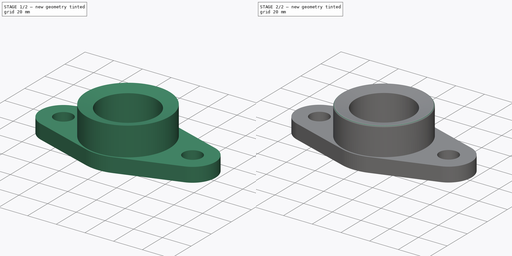
[diagram: build sequence overview — one tinted view per stage of 2, left to right]
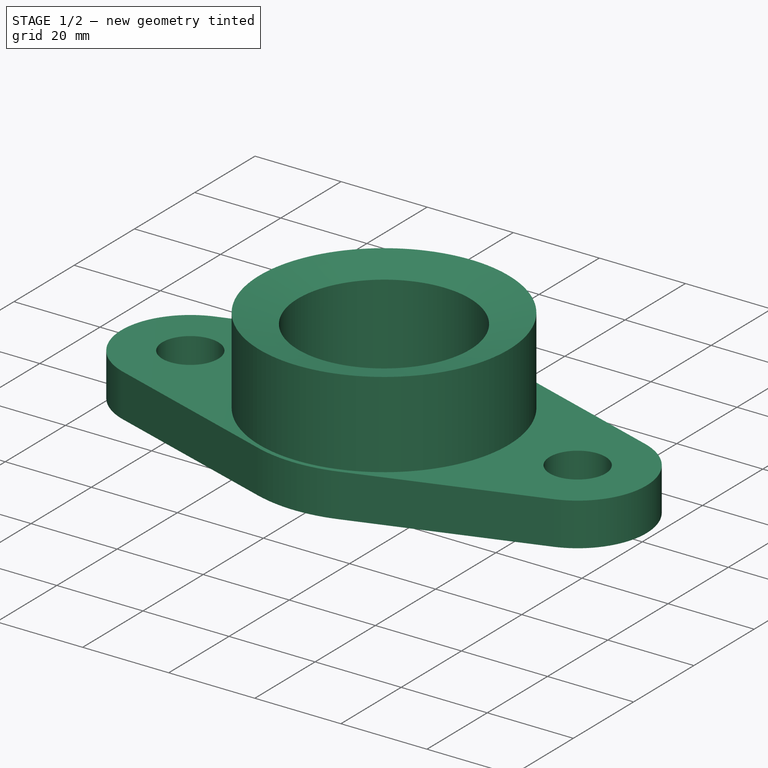
[diagram: stage 1 of 2 — iso view after this stage's code; geometry added in this stage tinted green]
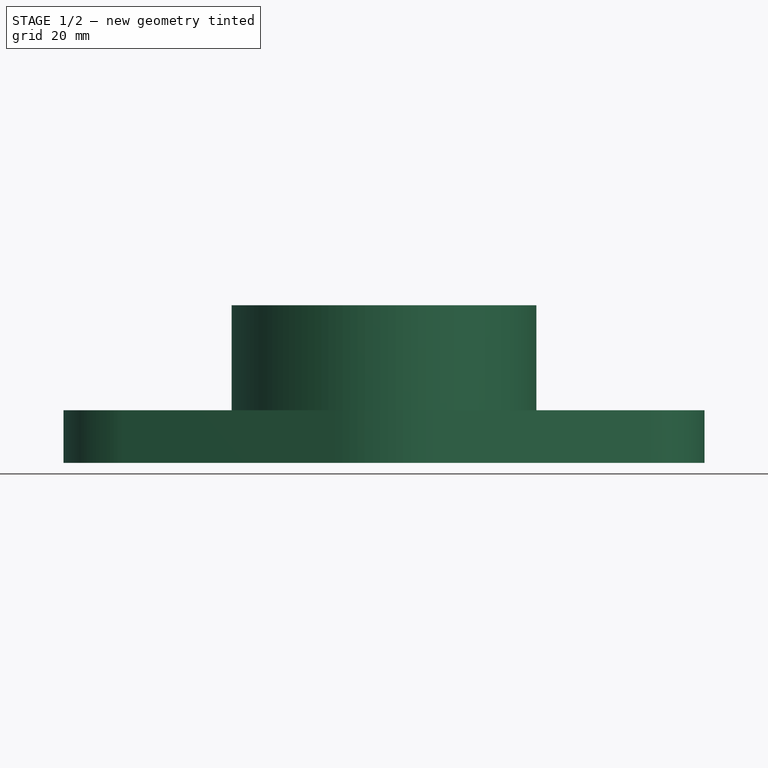
[diagram: stage 1 of 2 — front view after this stage's code; geometry added in this stage tinted green]
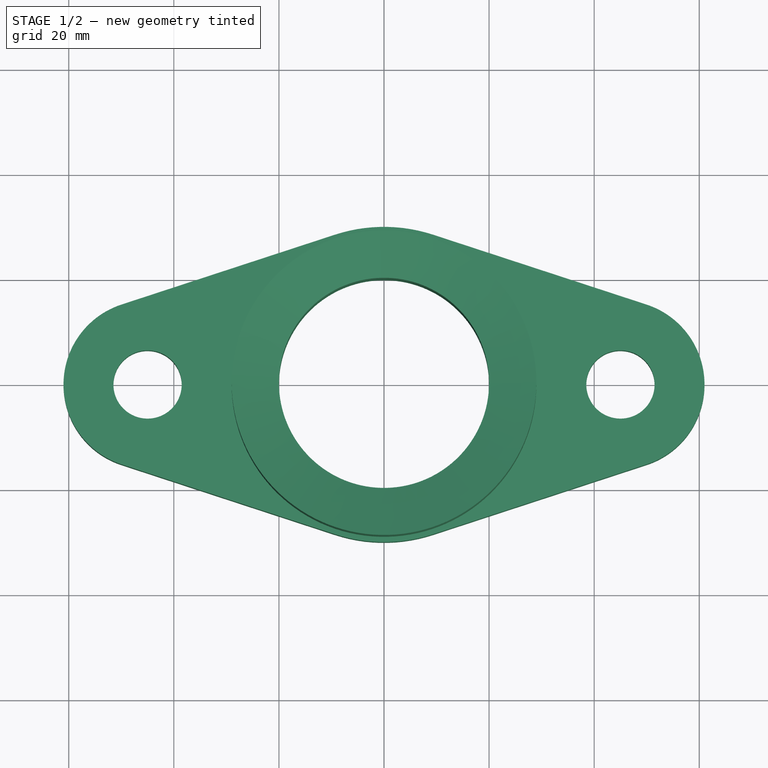
[diagram: stage 1 of 2 — top view after this stage's code; geometry added in this stage tinted green]
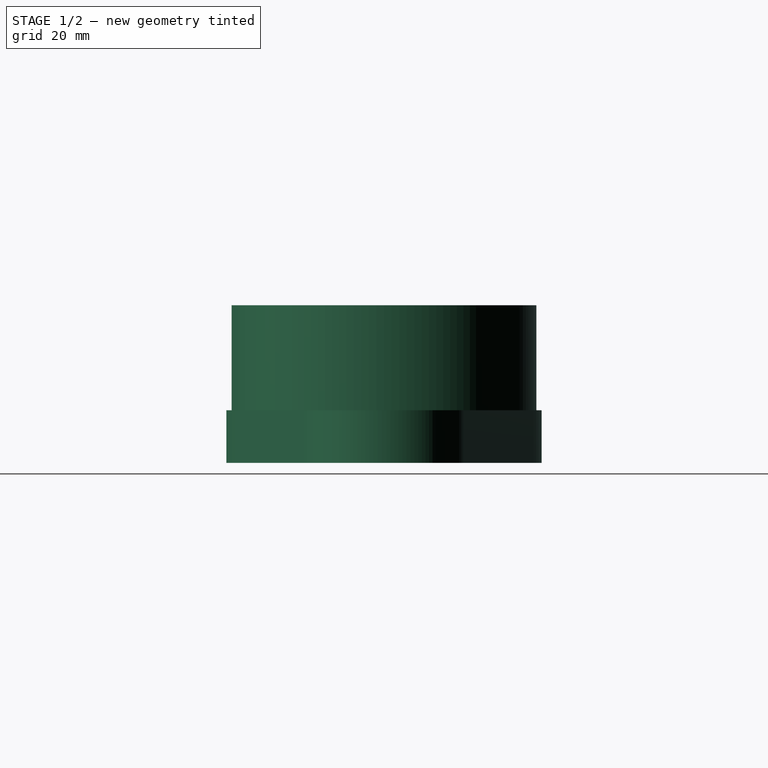
[diagram: stage 1 of 2 — right view after this stage's code; geometry added in this stage tinted green]
FCSTD DOCUMENT  (FreeCAD 0.15R4671 (Git))
Label: one
License: All rights reserved
LicenseURL: http://en.wikipedia.org/wiki/All_rights_reserved
objects: Sketcher::SketchObject×2, PartDesign::Pad×1, PartDesign::Revolution×1, Part::MultiFuse×1, PartDesign::Fillet×1
note: 8 computed .brp shape members not serialized (recipe doc carries the construction recipe); baked Part::Feature solids carry a one-line shape summary decoded from their .brp

FEATURE [Sketcher::SketchObject] Sketch
  sketch-geometry (11):
    g0: ArcOfCircle CenterX=0 CenterY=0 CenterZ=0 NormalX=0 NormalY=0 NormalZ=1 Radius=30 StartAngle=1.25443 EndAngle=1.88716
    g1: ArcOfCircle CenterX=0 CenterY=0 CenterZ=0 NormalX=0 NormalY=0 NormalZ=1 Radius=30 StartAngle=4.39603 EndAngle=5.02875
    g2: ArcOfCircle CenterX=-45 CenterY=0 CenterZ=0 NormalX=0 NormalY=0 NormalZ=1 Radius=16 StartAngle=1.88716 EndAngle=4.39603
    g3: ArcOfCircle CenterX=45 CenterY=0 CenterZ=0 NormalX=0 NormalY=0 NormalZ=1 Radius=16 StartAngle=5.02875 EndAngle=7.53762
    g4: LineSegment StartX=-49.9778 StartY=15.206 StartZ=0 EndX=-9.33333 EndY=28.5112 EndZ=0
    g5: LineSegment StartX=-49.9778 StartY=-15.206 StartZ=0 EndX=-9.33333 EndY=-28.5112 EndZ=0
    g6: LineSegment StartX=9.33333 StartY=28.5112 StartZ=0 EndX=49.9778 EndY=15.206 EndZ=0
    g7: LineSegment StartX=9.33333 StartY=-28.5112 StartZ=0 EndX=49.9778 EndY=-15.206 EndZ=0
    g8: Circle CenterX=0 CenterY=0 CenterZ=0 NormalX=0 NormalY=0 NormalZ=1 Radius=20
    g9: Circle CenterX=-45 CenterY=0 CenterZ=0 NormalX=0 NormalY=0 NormalZ=1 Radius=6.5
    g10: Circle CenterX=45 CenterY=0 CenterZ=0 NormalX=0 NormalY=0 NormalZ=1 Radius=6.5
  constraints (24):
    c: Coincident(g0,g-1)
    c: Coincident(g1,g-1)
    c: PointOnObject(g2,g-1)
    c: PointOnObject(g3,g-1)
    c: Tangent(g4,g0) = 1.5708
    c: Tangent(g4,g2) = 1.5708
    c: Tangent(g2,g5) = -1.5708
    c: Tangent(g5,g1) = -1.5708
    c: Tangent(g1,g7) = -1.5708
    c: Tangent(g7,g3) = -1.5708
    c: Tangent(g3,g6) = 1.5708
    c: Tangent(g6,g0) = 1.5708
    c: Symmetric(g2,g3,g-2)
    c: DistanceX(g2,g3) = 90
    c: Equal(g0,g1)
    c: Equal(g3,g2)
    c: Radius(g0) = 30
    c: Radius(g3) = 16
    c: Coincident(g8,g-1)
    c: Radius(g8) = 20
    c: Coincident(g9,g2)
    c: Coincident(g10,g3)
    c: Equal(g9,g10)
    c: Radius(g10) = 6.5
FEATURE [PartDesign::Pad] Pad
  Length = 10
  Length2 = 100
  Sketch = -> Sketch
  Type = 0
FEATURE [Sketcher::SketchObject] Sketch001
  Placement = pos=(0,0,0) rot=(-1,0,0;4.71239rad)
  sketch-geometry (4):
    g0: LineSegment StartX=20 StartY=9 StartZ=0 EndX=20 EndY=27.5885 EndZ=0
    g1: LineSegment StartX=20 StartY=27.5885 StartZ=0 EndX=29 EndY=30 EndZ=0
    g2: LineSegment StartX=29 StartY=30 StartZ=0 EndX=29 EndY=9 EndZ=0
    g3: LineSegment StartX=29 StartY=9 StartZ=0 EndX=20 EndY=9 EndZ=0
  constraints (12):
    c: Vertical(g0)
    c: Coincident(g0,g1)
    c: Coincident(g1,g2)
    c: Vertical(g2)
    c: Coincident(g2,g3)
    c: Coincident(g3,g0)
    c: Angle(g1) = 0.261799
    c: DistanceX(g-1,g0) = 20
    c: DistanceX(g-1,g1) = 29
    c: DistanceY(g-1,g0) = 9
    c: DistanceY(g-1,g2) = 9
    c: DistanceY(g-1,g1) = 30
FEATURE [PartDesign::Revolution] Revolution
  Angle = 360
  Axis = (0,0,1)
  Base = (0,0,0)
  Placement = pos=(0,0,0) rot=(-1,0,0;4.71239rad)
  ReferenceAxis = -> Sketch001 [V_Axis]
  Reversed = true
  Sketch = -> Sketch001
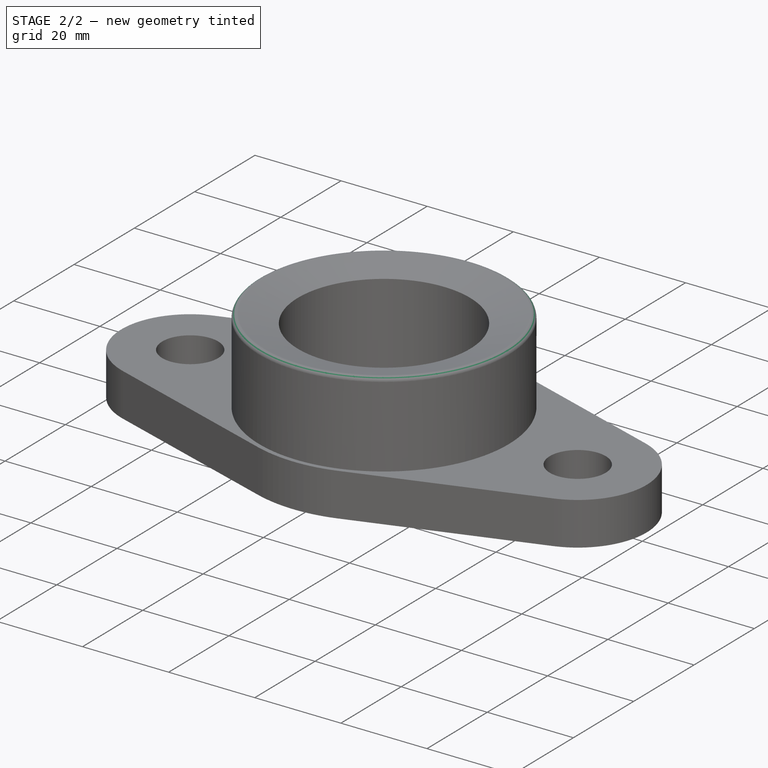
[diagram: stage 2 of 2 — iso view after this stage's code; geometry added in this stage tinted green]
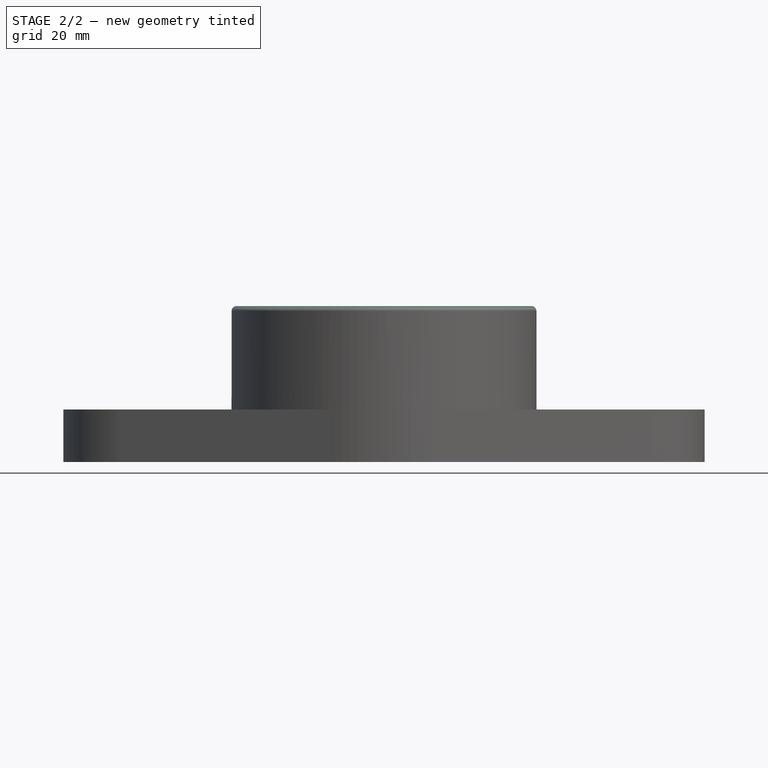
[diagram: stage 2 of 2 — front view after this stage's code; geometry added in this stage tinted green]
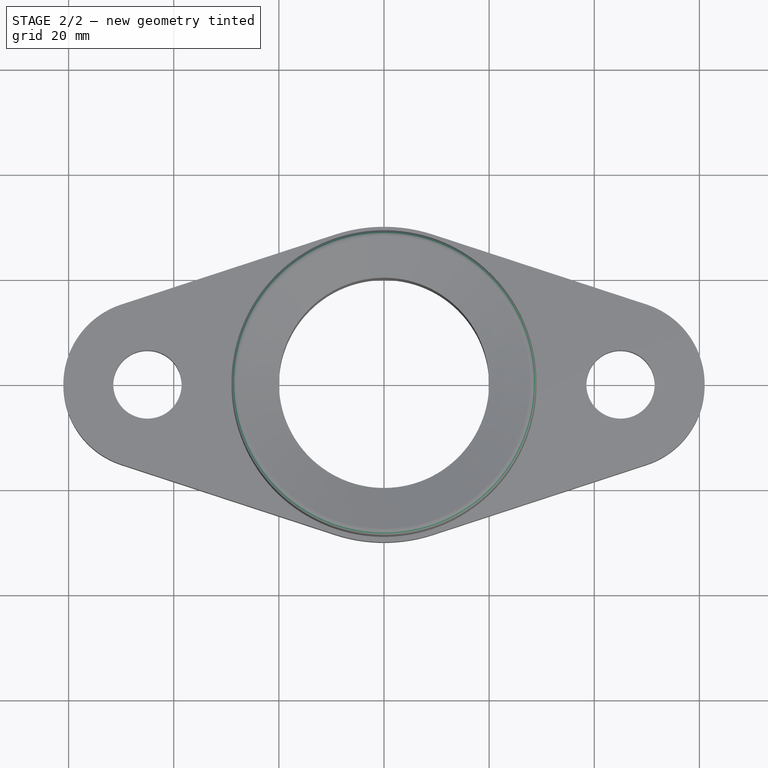
[diagram: stage 2 of 2 — top view after this stage's code; geometry added in this stage tinted green]
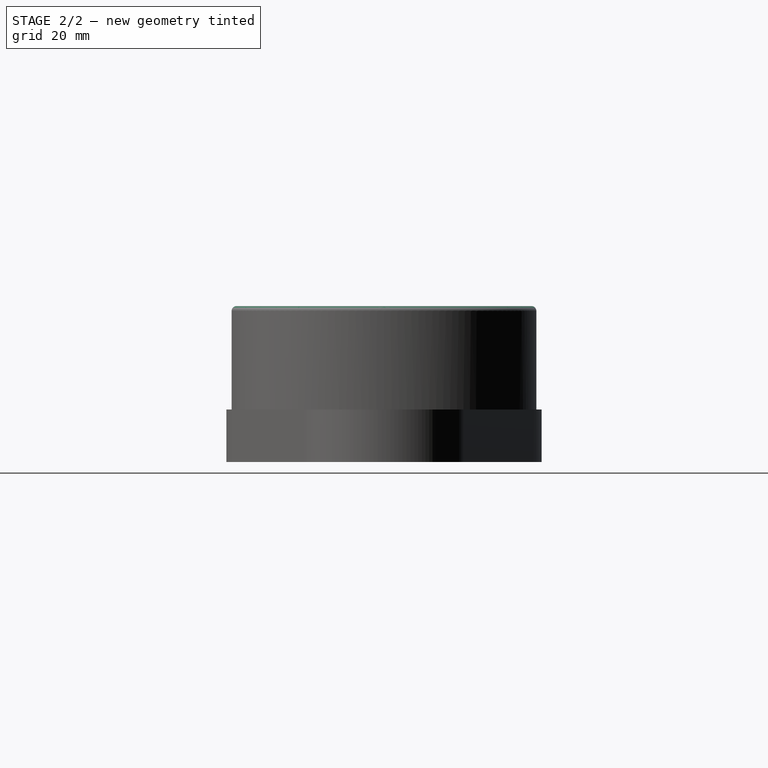
[diagram: stage 2 of 2 — right view after this stage's code; geometry added in this stage tinted green]
FEATURE [Part::MultiFuse] Fusion
  Shapes = -> [Pad,Revolution]
FEATURE [PartDesign::Fillet] Fillet
  Base = -> Fusion [Edge36]
  Radius = 1
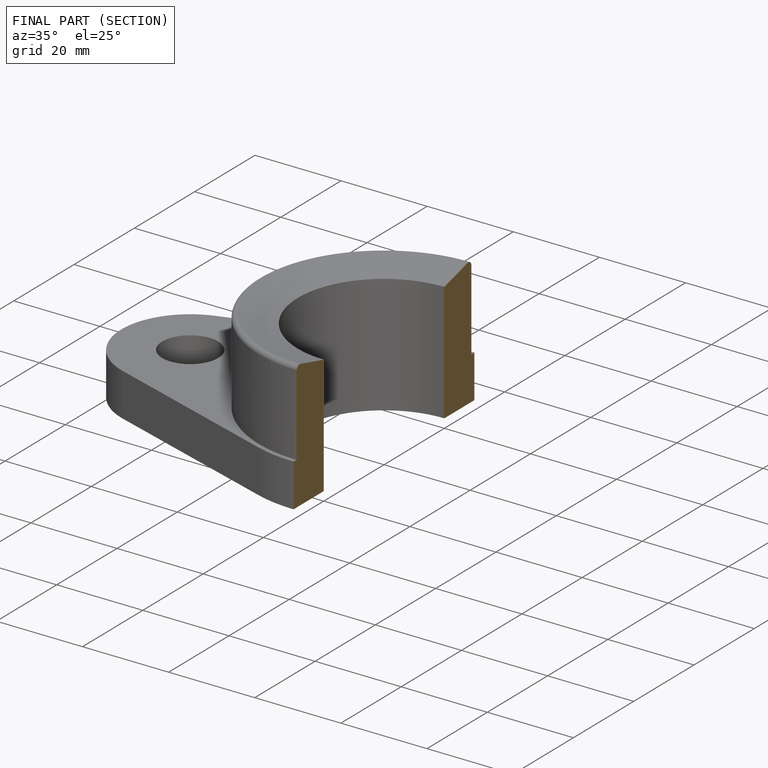
[diagram: finished part — half-section view (interior)]
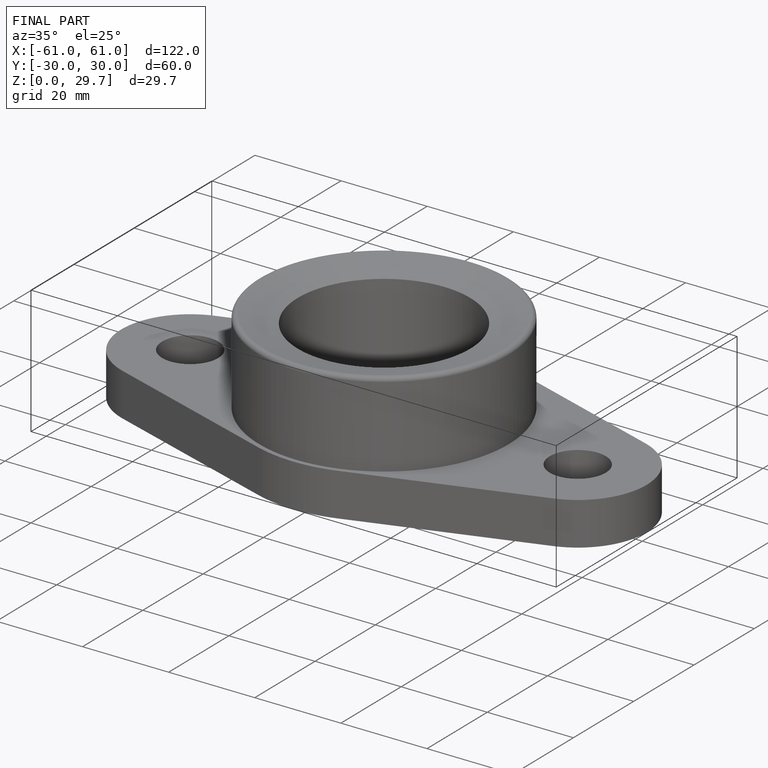
[diagram: finished part — iso view with bounding-box wireframe]
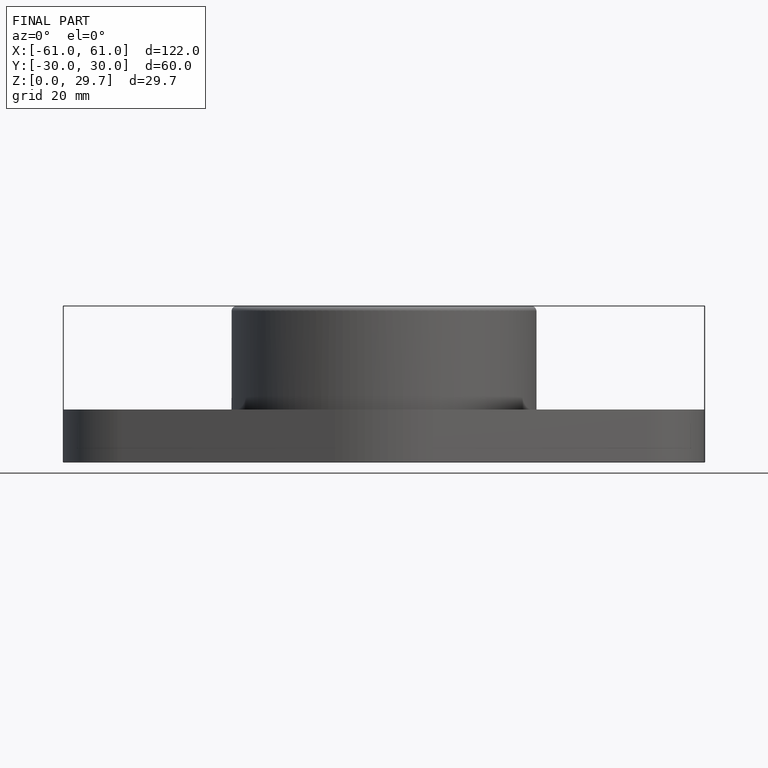
[diagram: finished part — front view with bounding-box wireframe]
